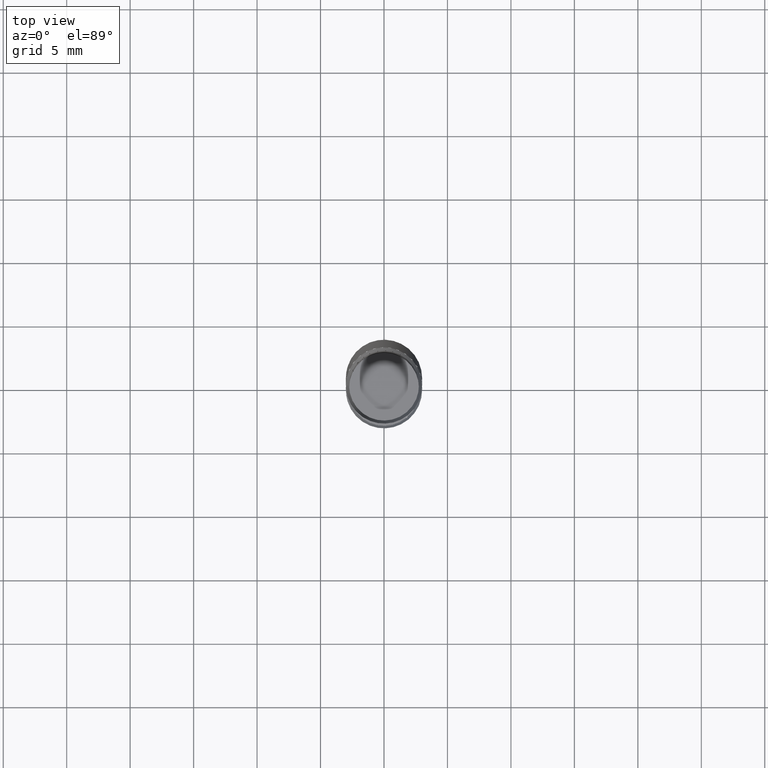
[diagram: clean part render]
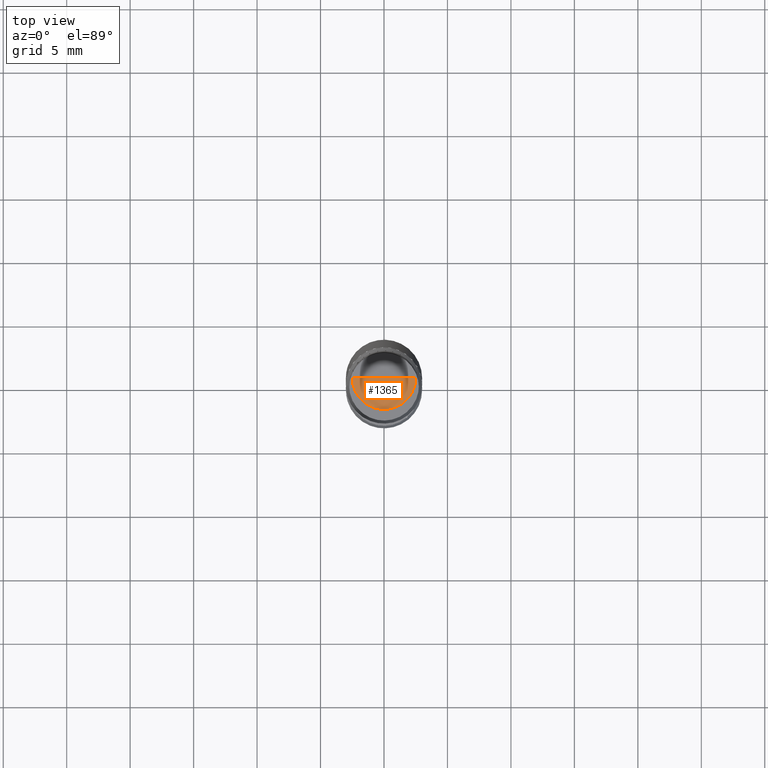
[diagram: same view with one face highlighted and labeled with its STEP entity id]
A machine part, top view. The second image highlights one B-rep face of the part: STEP entity #1365.
In plain terms, the highlighted face is a freeform B-spline surface patch.
Its self-contained STEP definition (entity closure, byte-faithful):
#966=CARTESIAN_POINT('',(2.5,0.0,35.06699011));
#970=CARTESIAN_POINT('',(-2.5,0.0,35.06699011));
#971=CARTESIAN_POINT('',(0.0,0.0,35.06699011));
#984=CARTESIAN_POINT('',(-2.5,-2.5,35.06699011));
#985=CARTESIAN_POINT('',(0.0,-2.5,35.06699011));
#986=CARTESIAN_POINT('',(2.5,-2.5,35.06699011));
#1350=(
BOUNDED_SURFACE()
B_SPLINE_SURFACE(1,2,(
(#970,#984,#985,#986,#966),
(#971,#971,#971,#971,#971)
), .UNSPECIFIED.,.F.,.F.,.F.)
B_SPLINE_SURFACE_WITH_KNOTS((2,2),(3,2,3),(
0.0,1.0),(
0.0,0.5,1.0), .UNSPECIFIED.)
GEOMETRIC_REPRESENTATION_ITEM()
RATIONAL_B_SPLINE_SURFACE(((1.0,0.707106781187,1.0,0.707106781187,1.0),
(1.0,0.707106781187,1.0,0.707106781187,1.0)
))
REPRESENTATION_ITEM('')
SURFACE()
);
#1351=(
BOUNDED_CURVE()
B_SPLINE_CURVE(1,(#971,#966),.UNSPECIFIED.,.F.,.F.)
B_SPLINE_CURVE_WITH_KNOTS((2,2),
(0.0,1.0),.UNSPECIFIED.)
CURVE()
GEOMETRIC_REPRESENTATION_ITEM()
RATIONAL_B_SPLINE_CURVE((1.0,1.0))
REPRESENTATION_ITEM('')
);
#1352=(
BOUNDED_CURVE()
B_SPLINE_CURVE(2,(#966,#986,#985,#984,#970),.UNSPECIFIED.,.F.,.F.)
B_SPLINE_CURVE_WITH_KNOTS((3,2,3),
(0.0,0.5,1.0),.UNSPECIFIED.)
CURVE()
GEOMETRIC_REPRESENTATION_ITEM()
RATIONAL_B_SPLINE_CURVE((1.0,0.707106781187,1.0,0.707106781187,1.0))
REPRESENTATION_ITEM('')
);
#1353=(
BOUNDED_CURVE()
B_SPLINE_CURVE(1,(#970,#971),.UNSPECIFIED.,.F.,.F.)
B_SPLINE_CURVE_WITH_KNOTS((2,2),
(0.0,1.0),.UNSPECIFIED.)
CURVE()
GEOMETRIC_REPRESENTATION_ITEM()
RATIONAL_B_SPLINE_CURVE((1.0,1.0))
REPRESENTATION_ITEM('')
);
#1354=VERTEX_POINT('',#966);
#1355=VERTEX_POINT('',#970);
#1356=VERTEX_POINT('',#971);
#1357=EDGE_CURVE('',#1356,#1354,#1351,.T.);
#1358=EDGE_CURVE('',#1354,#1355,#1352,.T.);
#1359=EDGE_CURVE('',#1355,#1356,#1353,.T.);
#1360=ORIENTED_EDGE('',*,*,#1357,.T.);
#1361=ORIENTED_EDGE('',*,*,#1358,.T.);
#1362=ORIENTED_EDGE('',*,*,#1359,.T.);
#1363=EDGE_LOOP('',(#1360,#1361,#1362));
#1364=FACE_OUTER_BOUND('',#1363,.T.);
#1365=ADVANCED_FACE('',(#1364),#1350,.T.);